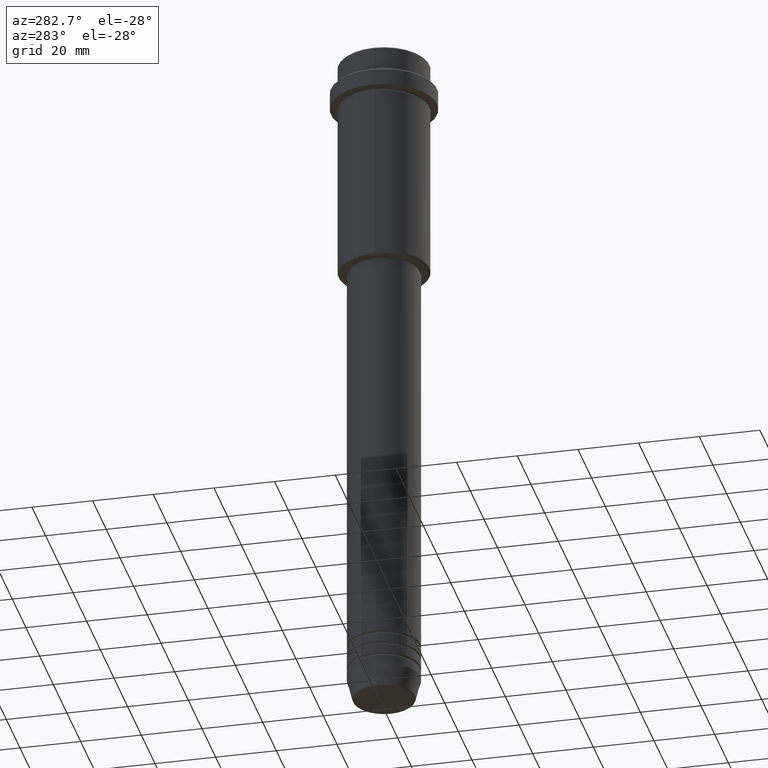
[diagram: clean part render]
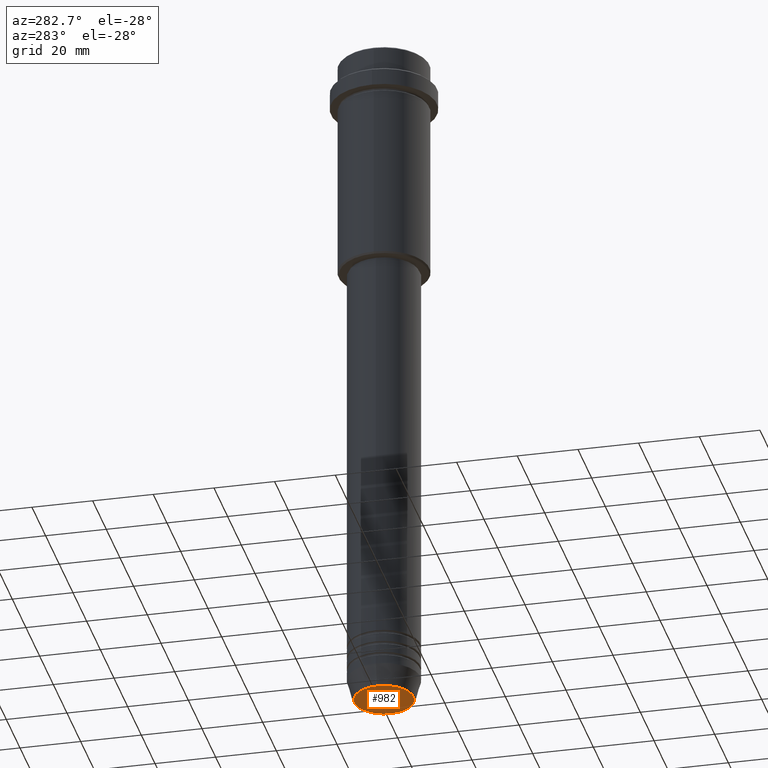
[diagram: same view with one face highlighted and labeled with its STEP entity id]
A machine part, auxiliary view. The second image highlights one B-rep face of the part: STEP entity #982.
In plain terms, the highlighted planar face has unit normal (0, -0, 1).
Its self-contained STEP definition (entity closure, byte-faithful):
#63 = CIRCLE ( 'NONE', #181, 9.740692158992658278 ) ;
#92 = EDGE_CURVE ( 'NONE', #793, #147, #63, .T. ) ;
#94 = DIRECTION ( 'NONE',  ( 0.000000000000000000, 0.000000000000000000, -1.000000000000000000 ) ) ;
#147 = VERTEX_POINT ( 'NONE', #196 ) ;
#181 = AXIS2_PLACEMENT_3D ( 'NONE', #1079, #94, #432 ) ;
#196 = CARTESIAN_POINT ( 'NONE',  ( -9.740692158992658278, 1.222463696683474999E-15, -229.9999999999999716 ) ) ;
#306 = DIRECTION ( 'NONE',  ( 1.000000000000000000, 0.000000000000000000, 0.000000000000000000 ) ) ;
#314 = AXIS2_PLACEMENT_3D ( 'NONE', #1405, #747, #306 ) ;
#317 = CIRCLE ( 'NONE', #813, 9.740692158992658278 ) ;
#362 = EDGE_LOOP ( 'NONE', ( #1188, #995 ) ) ;
#409 = DIRECTION ( 'NONE',  ( 0.000000000000000000, 0.000000000000000000, -1.000000000000000000 ) ) ;
#432 = DIRECTION ( 'NONE',  ( 1.000000000000000000, 0.000000000000000000, 0.000000000000000000 ) ) ;
#528 = EDGE_CURVE ( 'NONE', #147, #793, #317, .T. ) ;
#618 = CARTESIAN_POINT ( 'NONE',  ( 0.000000000000000000, 0.000000000000000000, -229.9999999999999716 ) ) ;
#747 = DIRECTION ( 'NONE',  ( 0.000000000000000000, -0.000000000000000000, 1.000000000000000000 ) ) ;
#793 = VERTEX_POINT ( 'NONE', #1229 ) ;
#813 = AXIS2_PLACEMENT_3D ( 'NONE', #618, #409, #1416 ) ;
#943 = FACE_OUTER_BOUND ( 'NONE', #362, .T. ) ;
#953 = PLANE ( 'NONE',  #314 ) ;
#982 = ADVANCED_FACE ( 'NONE', ( #943 ), #953, .F. ) ;
#995 = ORIENTED_EDGE ( 'NONE', *, *, #528, .T. ) ;
#1079 = CARTESIAN_POINT ( 'NONE',  ( 0.000000000000000000, 0.000000000000000000, -229.9999999999999716 ) ) ;
#1188 = ORIENTED_EDGE ( 'NONE', *, *, #92, .T. ) ;
#1229 = CARTESIAN_POINT ( 'NONE',  ( 9.740692158992658278, 0.000000000000000000, -229.9999999999999716 ) ) ;
#1405 = CARTESIAN_POINT ( 'NONE',  ( 0.000000000000000000, 0.000000000000000000, -229.9999999999999716 ) ) ;
#1416 = DIRECTION ( 'NONE',  ( 1.000000000000000000, 0.000000000000000000, 0.000000000000000000 ) ) ;